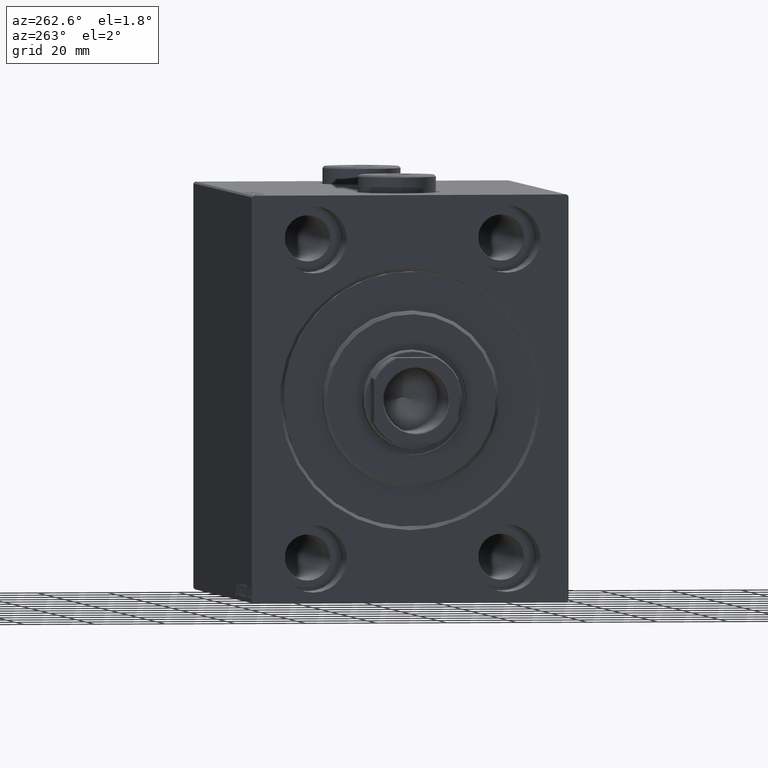
[diagram: clean part render]
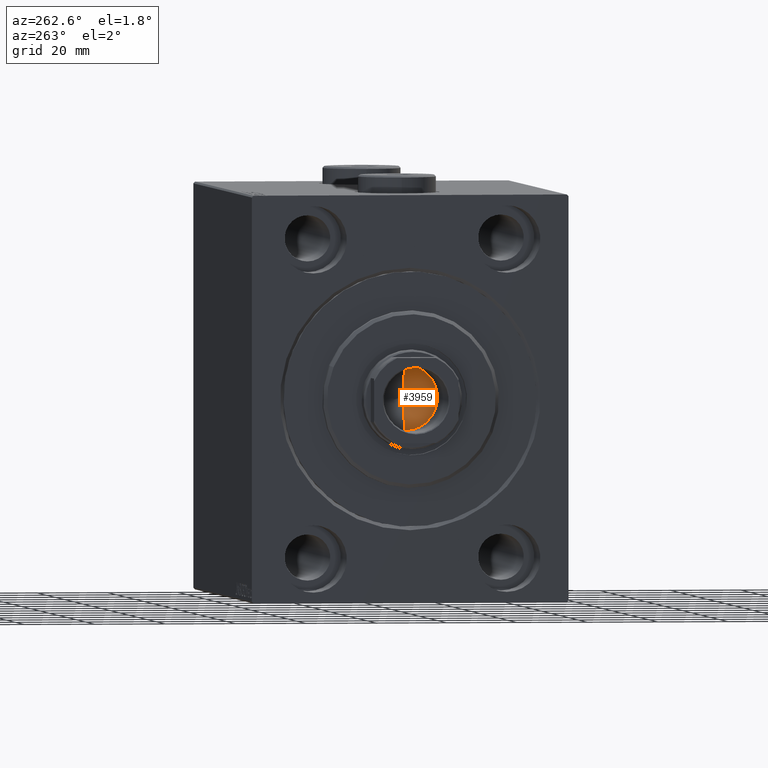
[diagram: same view with one face highlighted and labeled with its STEP entity id]
A machine part, auxiliary view. The second image highlights one B-rep face of the part: STEP entity #3959.
In plain terms, the highlighted conical surface has half-angle 59 deg.
Its self-contained STEP definition (entity closure, byte-faithful):
#691 = DIRECTION ( 'NONE',  ( 1.000000000000000000, 0.000000000000000000, 0.000000000000000000 ) ) ;
#941 = CIRCLE ( 'NONE', #6788, 9.249999999999994671 ) ;
#1144 = CARTESIAN_POINT ( 'NONE',  ( 9.249999999999994671, 0.000000000000000000, 99.00000000000000000 ) ) ;
#3021 = CARTESIAN_POINT ( 'NONE',  ( 0.000000000000000000, 0.000000000000000000, 99.00000000000000000 ) ) ;
#3676 = CARTESIAN_POINT ( 'NONE',  ( 9.249999999999994671, 0.000000000000000000, 99.00000000000000000 ) ) ;
#3959 = ADVANCED_FACE ( 'NONE', ( #21556 ), #11149, .F. ) ;
#4916 = LINE ( 'NONE', #18868, #38058 ) ;
#6788 = AXIS2_PLACEMENT_3D ( 'NONE', #7119, #17399, #691 ) ;
#7119 = CARTESIAN_POINT ( 'NONE',  ( 0.000000000000000000, 0.000000000000000000, 99.00000000000000000 ) ) ;
#7135 = CARTESIAN_POINT ( 'NONE',  ( -6.793016015247754405E-15, 0.000000000000000000, 93.44203927399507847 ) ) ;
#9109 = ORIENTED_EDGE ( 'NONE', *, *, #32261, .F. ) ;
#9110 = DIRECTION ( 'NONE',  ( 1.000000000000000000, 0.000000000000000000, 0.000000000000000000 ) ) ;
#9278 = EDGE_CURVE ( 'NONE', #33899, #9444, #941, .T. ) ;
#9444 = VERTEX_POINT ( 'NONE', #1144 ) ;
#9711 = AXIS2_PLACEMENT_3D ( 'NONE', #3021, #10114, #9110 ) ;
#10114 = DIRECTION ( 'NONE',  ( -0.000000000000000000, -0.000000000000000000, 1.000000000000000000 ) ) ;
#10554 = LINE ( 'NONE', #3676, #43944 ) ;
#11149 = CONICAL_SURFACE ( 'NONE', #9711, 9.249999999999994671, 1.029744258676654756 ) ;
#11596 = VERTEX_POINT ( 'NONE', #7135 ) ;
#17399 = DIRECTION ( 'NONE',  ( -0.000000000000000000, -0.000000000000000000, 1.000000000000000000 ) ) ;
#18868 = CARTESIAN_POINT ( 'NONE',  ( -9.249999999999994671, 1.132798289211300909E-15, 99.00000000000000000 ) ) ;
#21556 = FACE_OUTER_BOUND ( 'NONE', #42639, .T. ) ;
#28337 = ORIENTED_EDGE ( 'NONE', *, *, #30850, .T. ) ;
#29432 = DIRECTION ( 'NONE',  ( -0.8571673007021124446, 1.049727191138618819E-16, 0.5150380749100539335 ) ) ;
#30850 = EDGE_CURVE ( 'NONE', #11596, #33899, #4916, .T. ) ;
#32013 = CARTESIAN_POINT ( 'NONE',  ( -9.249999999999994671, 1.132798289211300909E-15, 99.00000000000000000 ) ) ;
#32261 = EDGE_CURVE ( 'NONE', #11596, #9444, #10554, .T. ) ;
#33899 = VERTEX_POINT ( 'NONE', #32013 ) ;
#38058 = VECTOR ( 'NONE', #29432, 1000.000000000000000 ) ;
#42624 = DIRECTION ( 'NONE',  ( 0.8571673007021124446, 0.000000000000000000, 0.5150380749100539335 ) ) ;
#42639 = EDGE_LOOP ( 'NONE', ( #9109, #28337, #43802 ) ) ;
#43802 = ORIENTED_EDGE ( 'NONE', *, *, #9278, .T. ) ;
#43944 = VECTOR ( 'NONE', #42624, 1000.000000000000000 ) ;